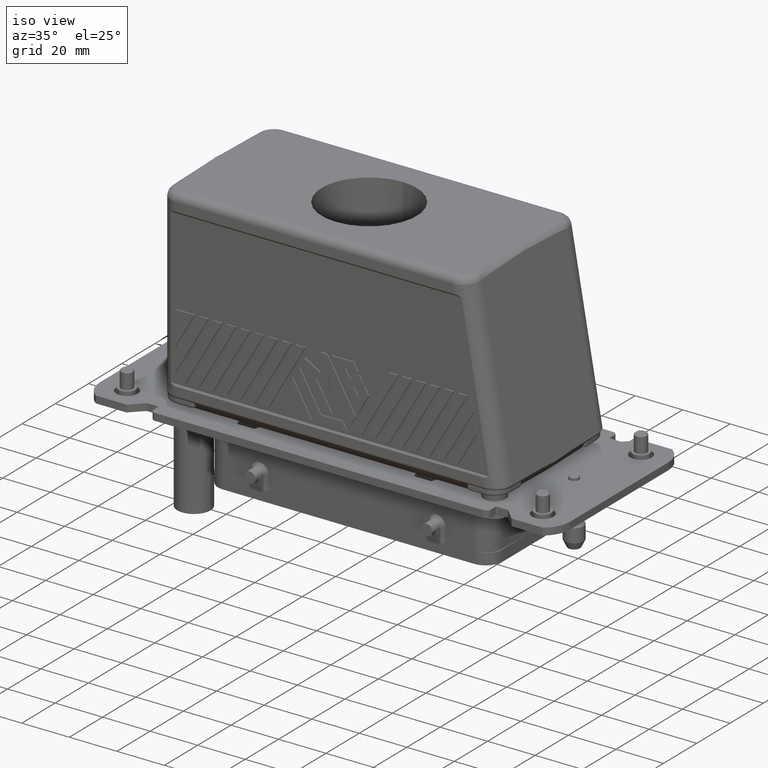
[diagram: clean part render]
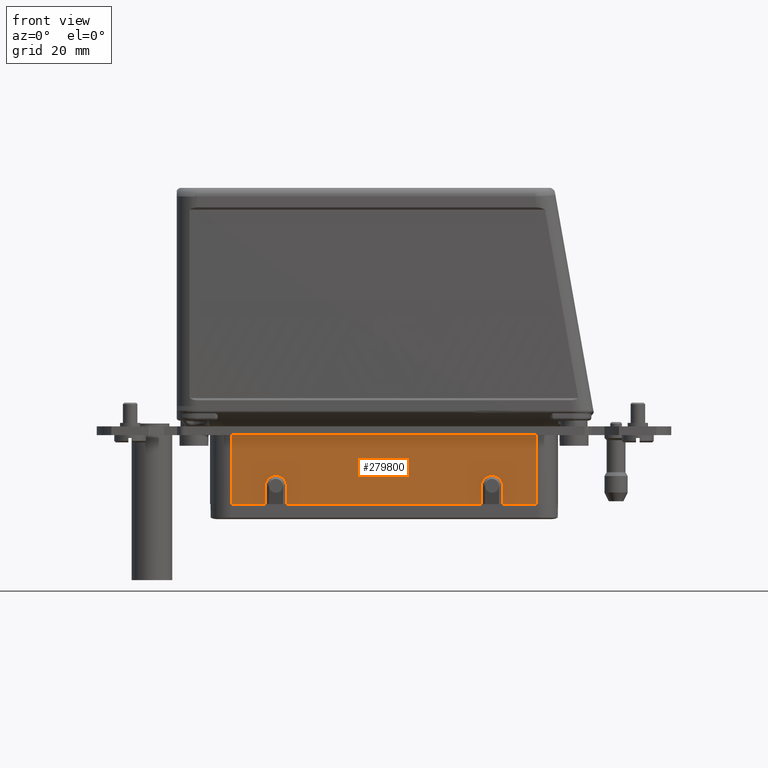
[diagram: tour spotlight — one face highlighted and labeled with its STEP entity id]
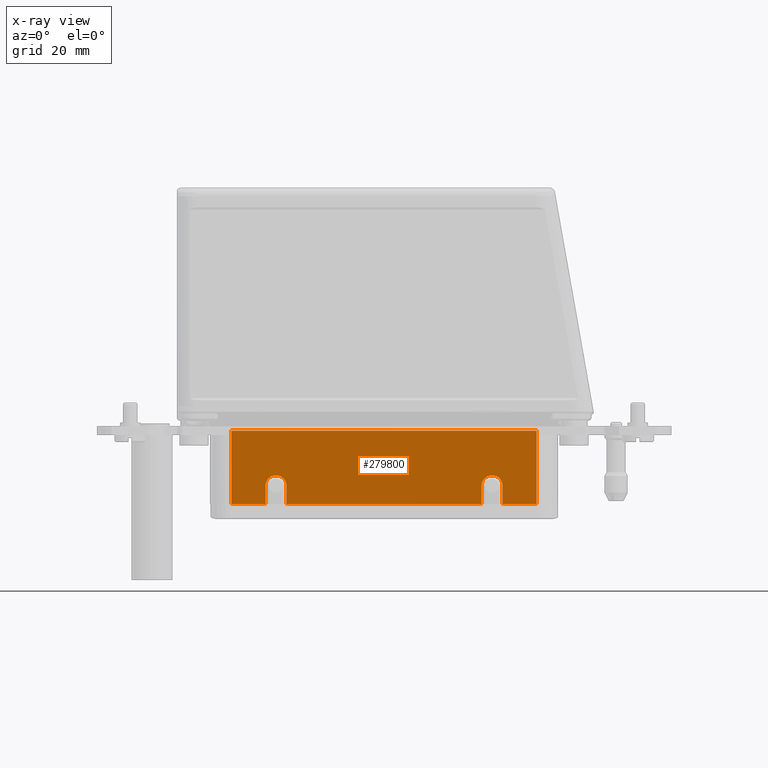
[diagram: x-ray of the same camera — body ghosted, this tour face saturated]
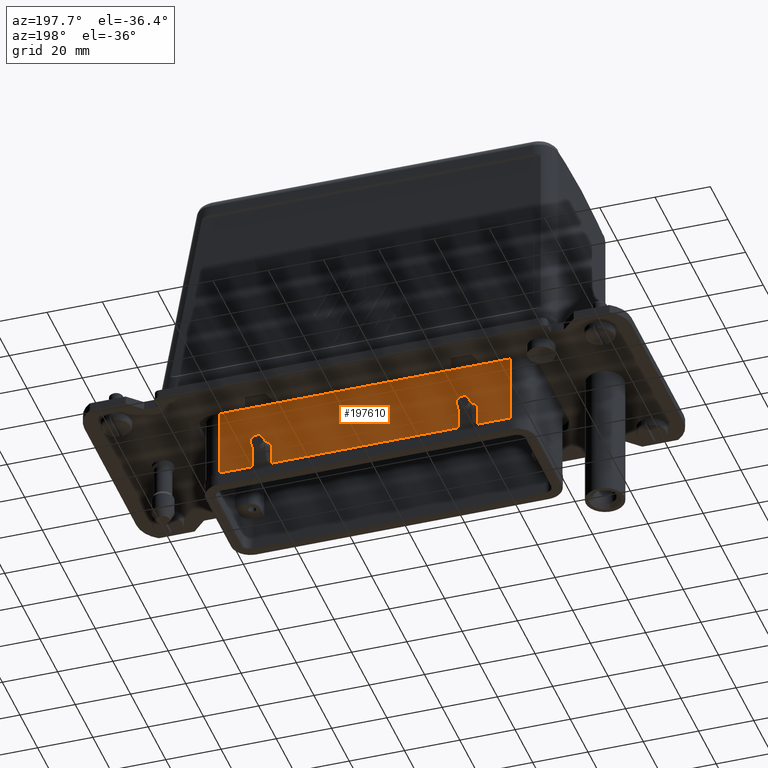
[diagram: tour spotlight — one face highlighted and labeled with its STEP entity id]
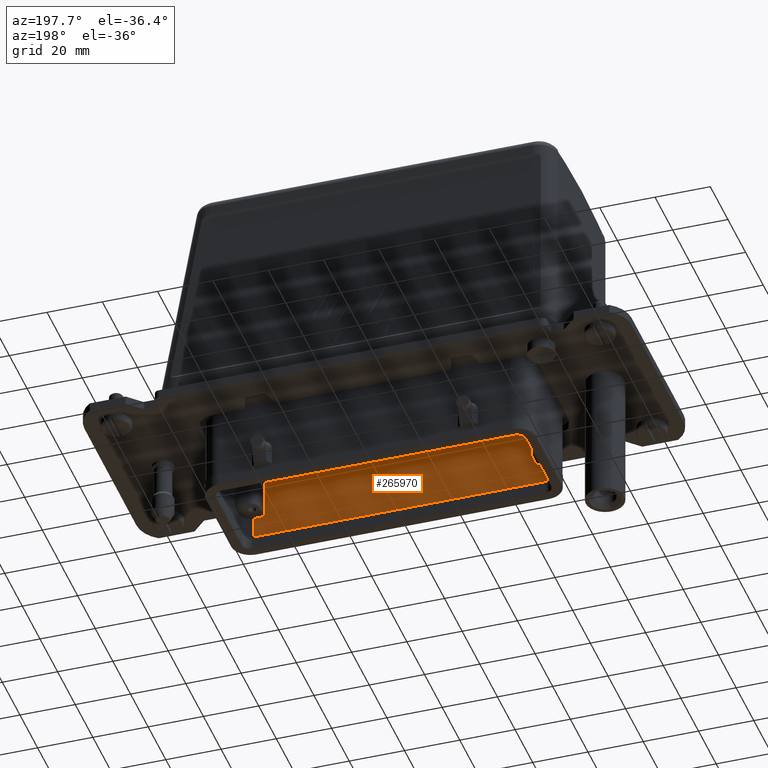
[diagram: tour spotlight — one face highlighted and labeled with its STEP entity id]
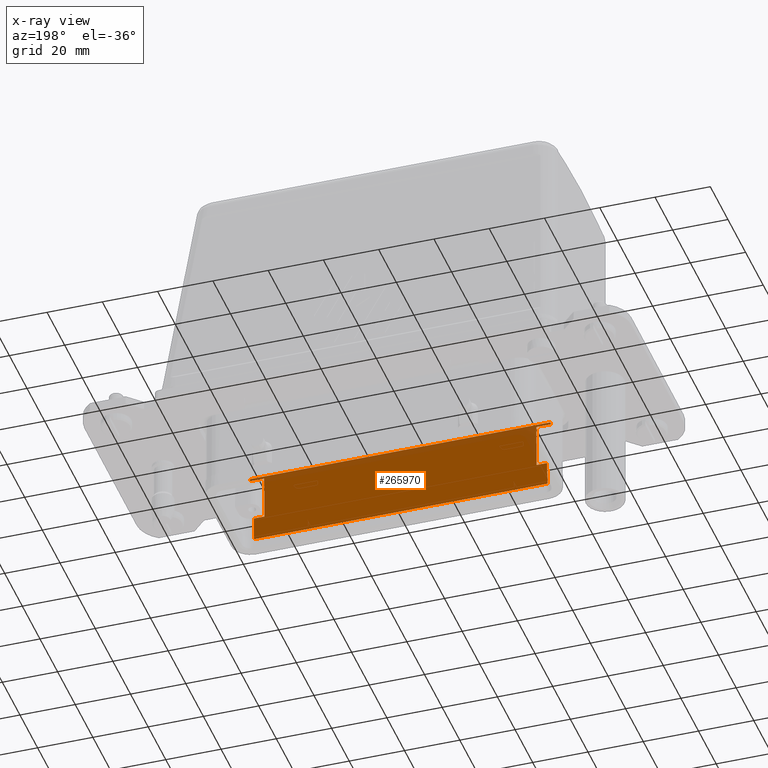
[diagram: x-ray of the same camera — body ghosted, this tour face saturated]
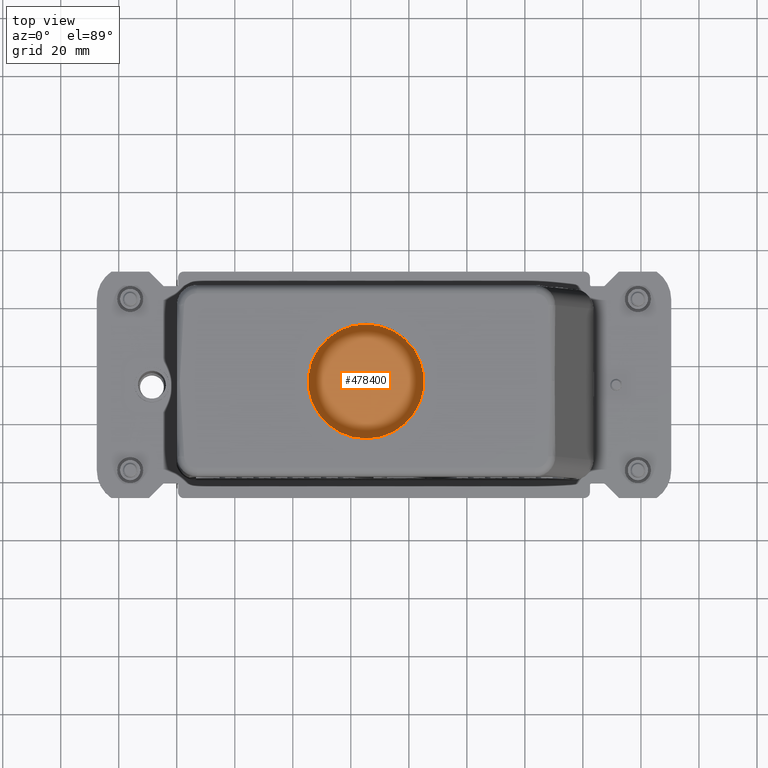
[diagram: tour spotlight — one face highlighted and labeled with its STEP entity id]
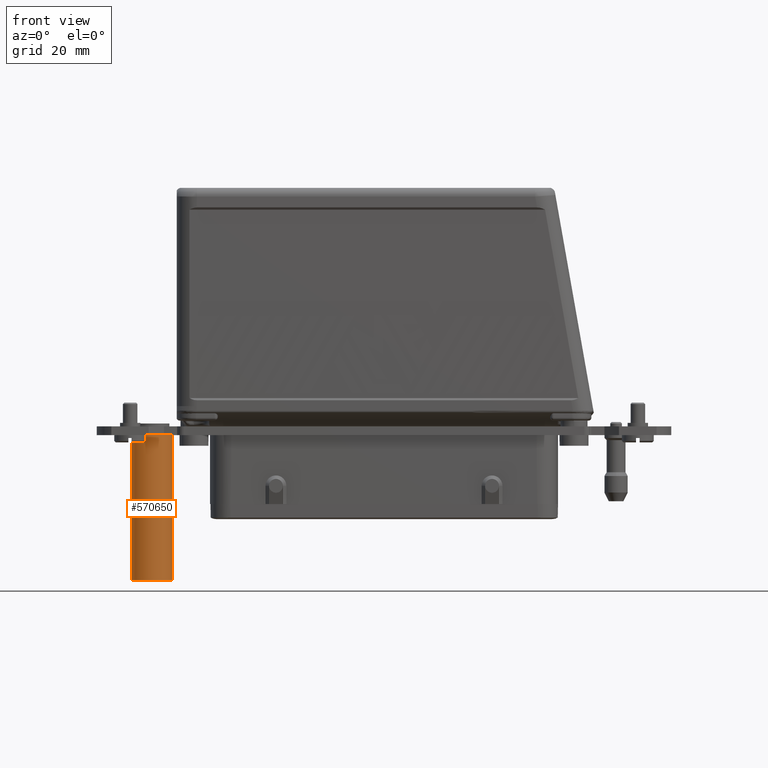
[diagram: tour spotlight — one face highlighted and labeled with its STEP entity id]
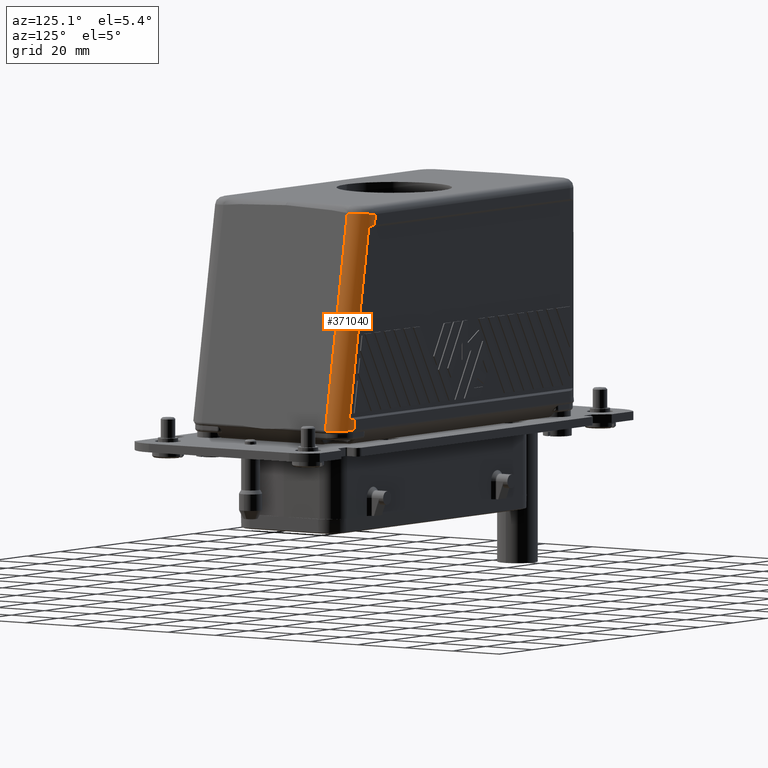
[diagram: tour spotlight — one face highlighted and labeled with its STEP entity id]
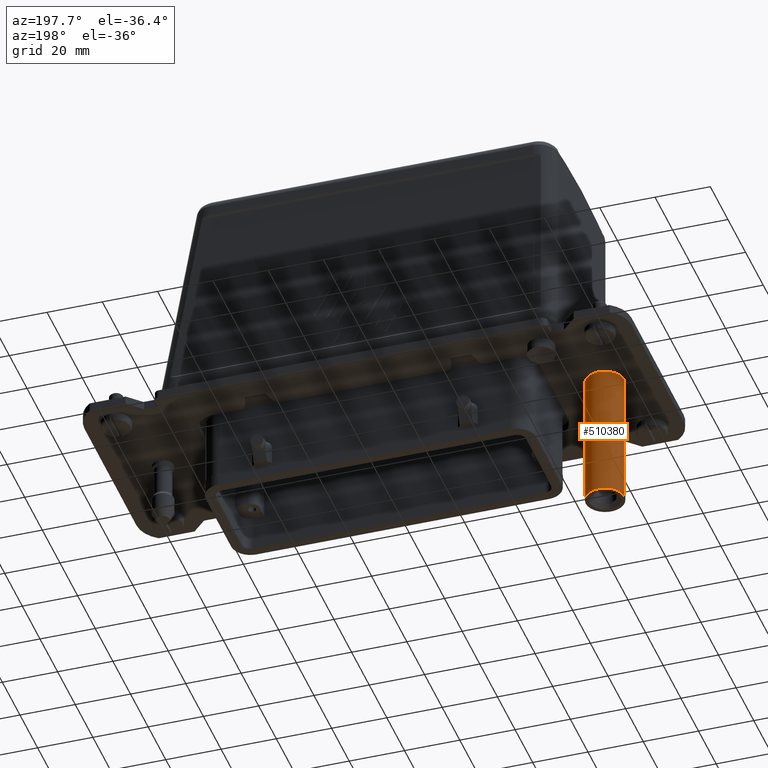
[diagram: tour spotlight — one face highlighted and labeled with its STEP entity id]
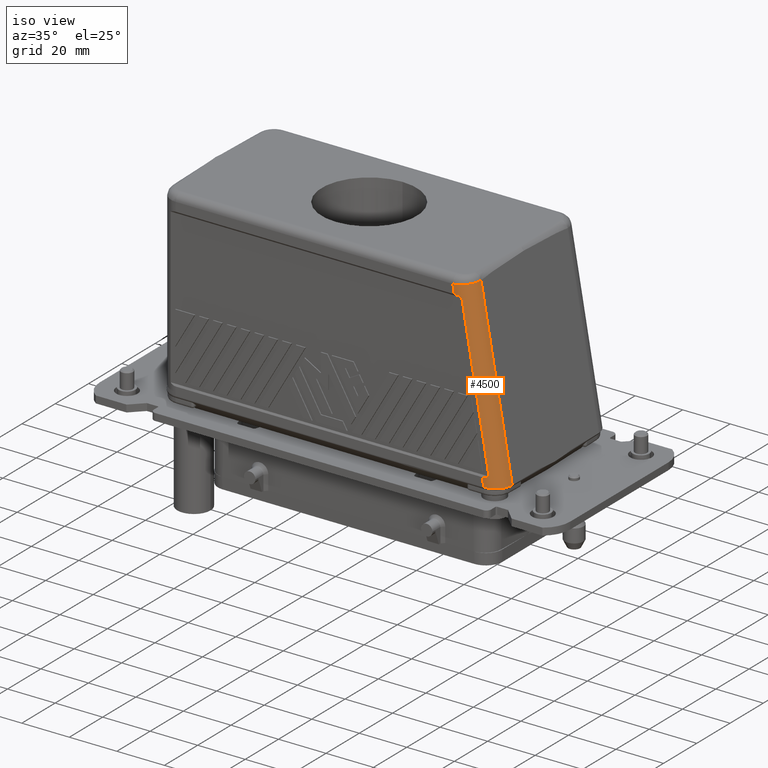
[diagram: tour spotlight — one face highlighted and labeled with its STEP entity id]
A machine part: a face-by-face anatomy tour. The part has 986 B-rep faces; the first image is the clean iso view, then the 8 largest visible faces are spotlighted one at a time (largest first), each with its STEP entity span.

Face 1 — front view, entity #279800. An x-ray twin of the same camera follows (body ghosted, this face saturated) — the face is partly hidden behind the body. In plain terms, the highlighted planar face has unit normal (-0, -1, -0).
Definition (entity closure, byte-faithful):
#211220=CARTESIAN_POINT('',(25.1249826717835,45.036608000024,
48.654455752932));
#211230=VERTEX_POINT('',#211220);
#277940=CARTESIAN_POINT('',(25.1249826717887,45.036608000024,
-56.5706322061951));
#277950=VERTEX_POINT('',#277940);
#278230=CARTESIAN_POINT('',(25.1249826717887,20.0000000000222,
-56.5706322061951));
#278240=DIRECTION('',(-2.40356057059527E-31,1.,1.62312834311912E-32));
#278250=VECTOR('',#278240,1.);
#278260=LINE('',#278230,#278250);
#278270=CARTESIAN_POINT('',(25.1249826717887,19.7826389097134,
-56.5706322061951));
#278280=VERTEX_POINT('',#278270);
#278290=EDGE_CURVE('',#278280,#277950,#278260,.T.);
#278860=CARTESIAN_POINT('',(25.124982671783,19.715688001193,
-46.4534603858266));
#278870=DIRECTION('',(-1.,-2.40356057059527E-31,-2.88336182627288E-15));
#278880=DIRECTION('',(-2.88336182627288E-15,0.,1.));
#278890=AXIS2_PLACEMENT_3D('',#278860,#278870,#278880);
#278900=PLANE('',#278890);
#278910=CARTESIAN_POINT('',(25.1249826717828,22.9096234967532,
29.6899547671704));
#278920=DIRECTION('',(-5.91645678915759E-31,1.,1.22464679914715E-16));
#278930=VECTOR('',#278920,1.);
#278940=LINE('',#278910,#278930);
#278950=CARTESIAN_POINT('',(25.1249821967273,19.7826389934766,
29.6899550046982));
#278960=VERTEX_POINT('',#278950);
#278970=CARTESIAN_POINT('',(25.1249826717823,26.0366080000298,
29.6899547671699));
#278980=VERTEX_POINT('',#278970);
#278990=EDGE_CURVE('',#278960,#278980,#278940,.T.);
#279000=ORIENTED_EDGE('',*,*,#278990,.T.);
#279010=CARTESIAN_POINT('',(25.1249826717836,19.7826389097042,
-16.9572958031298));
#279020=DIRECTION('',(-2.88336182627288E-15,-2.1838096442105E-14,1.));
#279030=VECTOR('',#279020,1.);
#279040=LINE('',#279010,#279030);
#279050=CARTESIAN_POINT('',(25.1249823137013,19.7826389728524,
-37.598460743909));
#279060=VERTEX_POINT('',#279050);
#279070=EDGE_CURVE('',#279060,#278960,#279040,.T.);
#279080=ORIENTED_EDGE('',*,*,#279070,.T.);
#279090=CARTESIAN_POINT('',(25.124982671783,22.9096234967456,
-37.5984603858273));
#279100=DIRECTION('',(5.91645678915759E-31,-1.,-1.22464679914715E-16));
#279110=VECTOR('',#279100,1.);
#279120=LINE('',#279090,#279110);
#279130=CARTESIAN_POINT('',(25.1249826717828,26.0366080000222,
-37.598460385827));
#279140=VERTEX_POINT('',#279130);
#279150=EDGE_CURVE('',#279140,#279060,#279120,.T.);
#279160=ORIENTED_EDGE('',*,*,#279150,.T.);
#279170=CARTESIAN_POINT('',(25.124982671783,26.0366080000222,
-41.1984603858273));
#279180=DIRECTION('',(1.,1.23259516440783E-32,2.10623481404942E-14));
#279190=DIRECTION('',(2.10623481404942E-14,0.,-1.));
#279200=AXIS2_PLACEMENT_3D('',#279170,#279180,#279190);
#279210=CIRCLE('',#279200,3.60000000000042);
#279220=CARTESIAN_POINT('',(25.1249826717828,26.0366080000222,
-44.7984603858274));
#279230=VERTEX_POINT('',#279220);
#279240=EDGE_CURVE('',#279230,#279140,#279210,.T.);
#279250=ORIENTED_EDGE('',*,*,#279240,.T.);
#279260=CARTESIAN_POINT('',(25.124982671783,22.9096234548633,
-44.7984603858272));
#279270=DIRECTION('',(-5.91645678915759E-31,1.,1.22464679914715E-16));
#279280=VECTOR('',#279270,1.);
#279290=LINE('',#279260,#279280);
#279300=CARTESIAN_POINT('',(25.1249821967798,19.782638993469,
-44.7984599108023));
#279310=VERTEX_POINT('',#279300);
#279320=EDGE_CURVE('',#279310,#279230,#279290,.T.);
#279330=ORIENTED_EDGE('',*,*,#279320,.T.);
#279340=CARTESIAN_POINT('',(25.1249826717886,19.7826389097042,
-37.4572958031299));
#279350=DIRECTION('',(-2.88336182627288E-15,-2.1838096442105E-14,1.));
#279360=VECTOR('',#279350,1.);
#279370=LINE('',#279340,#279360);
#279380=EDGE_CURVE('',#278280,#279310,#279370,.T.);
#279390=ORIENTED_EDGE('',*,*,#279380,.T.);
#279400=ORIENTED_EDGE('',*,*,#278290,.F.);
#279410=CARTESIAN_POINT('',(25.124982671783,45.036608000024,
-41.4534603858269));
#279420=DIRECTION('',(-2.88336182627288E-15,2.05103835357463E-29,1.));
#279430=VECTOR('',#279420,1.);
#279440=LINE('',#279410,#279430);
#279450=EDGE_CURVE('',#277950,#211230,#279440,.T.);
#279460=ORIENTED_EDGE('',*,*,#279450,.F.);
#279470=CARTESIAN_POINT('',(25.1249826717835,20.0000000000298,
48.654455752932));
#279480=DIRECTION('',(2.40356057059527E-31,-1.,-1.62312834311911E-32));
#279490=VECTOR('',#279480,1.);
#279500=LINE('',#279470,#279490);
#279510=CARTESIAN_POINT('',(25.1249826717835,19.7826389097111,
48.654455752932));
#279520=VERTEX_POINT('',#279510);
#279530=EDGE_CURVE('',#211230,#279520,#279500,.T.);
#279540=ORIENTED_EDGE('',*,*,#279530,.F.);
#279550=CARTESIAN_POINT('',(25.1249826717836,19.7826389097118,
9.53270419687026));
#279560=DIRECTION('',(-2.88336182627288E-15,-2.1838096442105E-14,1.));
#279570=VECTOR('',#279560,1.);
#279580=LINE('',#279550,#279570);
#279590=CARTESIAN_POINT('',(25.1249821967264,19.7826389934766,
36.8899545296421));
#279600=VERTEX_POINT('',#279590);
#279610=EDGE_CURVE('',#279600,#279520,#279580,.T.);
#279620=ORIENTED_EDGE('',*,*,#279610,.T.);
#279630=CARTESIAN_POINT('',(25.1249826717828,22.9096234967532,
36.8899547671702));
#279640=DIRECTION('',(5.91645678915759E-31,-1.,-1.22464679914715E-16));
#279650=VECTOR('',#279640,1.);
#279660=LINE('',#279630,#279650);
#279670=CARTESIAN_POINT('',(25.1249826717827,26.0366080000298,
36.8899547671703));
#279680=VERTEX_POINT('',#279670);
#279690=EDGE_CURVE('',#279680,#279600,#279660,.T.);
#279700=ORIENTED_EDGE('',*,*,#279690,.T.);
#279710=CARTESIAN_POINT('',(25.1249826717828,26.0366080000298,
33.28995476717));
#279720=DIRECTION('',(1.,-2.56996091779033E-30,-2.1065198466273E-14));
#279730=DIRECTION('',(-2.1065198466273E-14,0.,-1.));
#279740=AXIS2_PLACEMENT_3D('',#279710,#279720,#279730);
#279750=CIRCLE('',#279740,3.60000000000042);
#279760=EDGE_CURVE('',#278980,#279680,#279750,.T.);
#279770=ORIENTED_EDGE('',*,*,#279760,.T.);
#279780=EDGE_LOOP('',(#279770,#279700,#279620,#279540,#279460,#279400,
#279390,#279330,#279250,#279160,#279080,#279000));
#279790=FACE_OUTER_BOUND('',#279780,.T.);
#279800=ADVANCED_FACE('',(#279790),#278900,.T.);

Face 2 — auxiliary view, entity #197610. In plain terms, the highlighted planar face has unit normal (0, 1, 0).
Definition (entity closure, byte-faithful):
#187270=CARTESIAN_POINT('',(68.1204348649359,26.0366080000222,
-37.5984603858274));
#187280=VERTEX_POINT('',#187270);
#187310=CARTESIAN_POINT('',(68.1204348649357,26.0366080000222,
-41.1984603858275));
#187320=DIRECTION('',(-1.,-3.05067303190938E-30,-2.85363892759248E-14));
#187330=DIRECTION('',(-2.85363892759248E-14,0.,1.));
#187340=AXIS2_PLACEMENT_3D('',#187310,#187320,#187330);
#187350=CIRCLE('',#187340,3.60000000000042);
#187360=CARTESIAN_POINT('',(68.1204348649361,26.0366080000222,
-44.7984603858276));
#187370=VERTEX_POINT('',#187360);
#187380=EDGE_CURVE('',#187280,#187370,#187350,.T.);
#188780=CARTESIAN_POINT('',(68.1204348649357,19.782638993469,
-44.7984603858253));
#188790=VERTEX_POINT('',#188780);
#188860=CARTESIAN_POINT('',(68.1204348649349,19.782638993469,
-37.5984603858269));
#188870=VERTEX_POINT('',#188860);
#190630=CARTESIAN_POINT('',(68.1204348649356,22.9096234967456,
-37.5984603858276));
#190640=DIRECTION('',(1.0230539864585E-30,1.,-1.22464679914715E-16));
#190650=VECTOR('',#190640,1.);
#190660=LINE('',#190630,#190650);
#190670=EDGE_CURVE('',#188870,#187280,#190660,.T.);
#192140=CARTESIAN_POINT('',(68.1204348649357,22.9096234967456,
-44.7984603858274));
#192150=DIRECTION('',(-1.0230539864585E-30,-1.,1.22464679914715E-16));
#192160=VECTOR('',#192150,1.);
#192170=LINE('',#192140,#192160);
#192180=EDGE_CURVE('',#187370,#188790,#192170,.T.);
#196800=CARTESIAN_POINT('',(68.1204348649355,19.715688001193,
-25.9534603858265));
#196810=DIRECTION('',(1.,2.40356057059527E-31,1.03541961112002E-14));
#196820=DIRECTION('',(1.03541961112002E-14,0.,-1.));
#196830=AXIS2_PLACEMENT_3D('',#196800,#196810,#196820);
#196840=PLANE('',#196830);
#196850=ORIENTED_EDGE('',*,*,#190670,.T.);
#196860=CARTESIAN_POINT('',(68.1204348649462,19.7826389934782,
-10.9672958031298));
#196870=DIRECTION('',(-1.03541961112002E-14,-2.41722350651733E-14,1.));
#196880=VECTOR('',#196870,1.);
#196890=LINE('',#196860,#196880);
#196900=CARTESIAN_POINT('',(68.120434864937,19.7826389934766,
29.6899547671723));
#196910=VERTEX_POINT('',#196900);
#196920=EDGE_CURVE('',#188870,#196910,#196890,.T.);
#196930=ORIENTED_EDGE('',*,*,#196920,.F.);
#196940=CARTESIAN_POINT('',(68.1204348649349,22.9096234967532,
29.6899547671702));
#196950=DIRECTION('',(-1.0230539864585E-30,-1.,1.22464679914715E-16));
#196960=VECTOR('',#196950,1.);
#196970=LINE('',#196940,#196960);
#196980=CARTESIAN_POINT('',(68.120434864935,26.0366080000298,
29.6899547671697));
#196990=VERTEX_POINT('',#196980);
#197000=EDGE_CURVE('',#196990,#196910,#196970,.T.);
#197010=ORIENTED_EDGE('',*,*,#197000,.T.);
#197020=CARTESIAN_POINT('',(68.1204348649349,26.0366080000298,
33.2899547671701));
#197030=DIRECTION('',(-1.,-3.05067303190938E-30,-2.85363892759248E-14));
#197040=DIRECTION('',(-2.85363892759248E-14,0.,1.));
#197050=AXIS2_PLACEMENT_3D('',#197020,#197030,#197040);
#197060=CIRCLE('',#197050,3.60000000000042);
#197070=CARTESIAN_POINT('',(68.1204348649348,26.0366080000298,
36.8899547671706));
#197080=VERTEX_POINT('',#197070);
#197090=EDGE_CURVE('',#197080,#196990,#197060,.T.);
#197100=ORIENTED_EDGE('',*,*,#197090,.T.);
#197110=CARTESIAN_POINT('',(68.1204348649349,22.9096234967532,
36.8899547671701));
#197120=DIRECTION('',(1.0230539864585E-30,1.,-1.22464679914715E-16));
#197130=VECTOR('',#197120,1.);
#197140=LINE('',#197110,#197130);
#197150=CARTESIAN_POINT('',(68.1204348649349,19.7826389934766,
36.889954767167));
#197160=VERTEX_POINT('',#197150);
#197170=EDGE_CURVE('',#197160,#197080,#197140,.T.);
#197180=ORIENTED_EDGE('',*,*,#197170,.T.);
#197190=CARTESIAN_POINT('',(68.1204348649411,19.7826389934782,
9.53270419687026));
#197200=DIRECTION('',(-1.03541961112002E-14,-2.41722350651733E-14,1.));
#197210=VECTOR('',#197200,1.);
#197220=LINE('',#197190,#197210);
#197230=CARTESIAN_POINT('',(68.1204348649407,19.7826389934688,
48.654455752932));
#197240=VERTEX_POINT('',#197230);
#197250=EDGE_CURVE('',#197160,#197240,#197220,.T.);
#197260=ORIENTED_EDGE('',*,*,#197250,.F.);
#197270=CARTESIAN_POINT('',(68.1204348649407,20.0000000000298,
48.654455752932));
#197280=DIRECTION('',(-2.40356057059527E-31,1.,1.62312834311911E-32));
#197290=VECTOR('',#197280,1.);
#197300=LINE('',#197270,#197290);
#197310=CARTESIAN_POINT('',(68.1204348649407,45.0366080000316,
48.654455752932));
#197320=VERTEX_POINT('',#197310);
#197330=EDGE_CURVE('',#197240,#197320,#197300,.T.);
#197340=ORIENTED_EDGE('',*,*,#197330,.F.);
#197350=CARTESIAN_POINT('',(68.1204348649357,45.036608000024,
-41.4534603858269));
#197360=DIRECTION('',(-1.03541961112002E-14,2.05103835357463E-29,1.));
#197370=VECTOR('',#197360,1.);
#197380=LINE('',#197350,#197370);
#197390=CARTESIAN_POINT('',(68.1204348649462,45.036608000024,
-56.5706321937552));
#197400=VERTEX_POINT('',#197390);
#197410=EDGE_CURVE('',#197400,#197320,#197380,.T.);
#197420=ORIENTED_EDGE('',*,*,#197410,.T.);
#197430=CARTESIAN_POINT('',(68.1204348649462,20.0000000000222,
-56.5706321937552));
#197440=DIRECTION('',(-2.40356057059527E-31,1.,1.62312834311911E-32));
#197450=VECTOR('',#197440,1.);
#197460=LINE('',#197430,#197450);
#197470=CARTESIAN_POINT('',(68.1204348649462,19.7826389934702,
-56.5706321937552));
#197480=VERTEX_POINT('',#197470);
#197490=EDGE_CURVE('',#197480,#197400,#197460,.T.);
#197500=ORIENTED_EDGE('',*,*,#197490,.T.);
#197510=CARTESIAN_POINT('',(68.1204348649388,19.782638993469,
-37.4572958031299));
#197520=DIRECTION('',(-1.2603882944068E-13,1.22464679914716E-16,-1.));
#197530=VECTOR('',#197520,1.);
#197540=LINE('',#197510,#197530);
#197550=EDGE_CURVE('',#188790,#197480,#197540,.T.);
#197560=ORIENTED_EDGE('',*,*,#197550,.T.);
#197570=ORIENTED_EDGE('',*,*,#192180,.T.);
#197580=ORIENTED_EDGE('',*,*,#187380,.T.);
#197590=EDGE_LOOP('',(#197580,#197570,#197560,#197500,#197420,#197340,
#197260,#197180,#197100,#197010,#196930,#196850));
#197600=FACE_OUTER_BOUND('',#197590,.T.);
#197610=ADVANCED_FACE('',(#197600),#196840,.T.);

Face 3 — auxiliary view, entity #265970. An x-ray twin of the same camera follows (body ghosted, this face saturated) — the face is partly hidden behind the body. In plain terms, the highlighted planar face has unit normal (-0, -0.9998, 0.0209).
Definition (entity closure, byte-faithful):
#215970=CARTESIAN_POINT('',(27.7368843123822,19.7807545245888,
-57.1416259170758));
#215980=VERTEX_POINT('',#215970);
#216480=CARTESIAN_POINT('',(27.736884312377,19.7807545245889,
49.2254494638128));
#216490=VERTEX_POINT('',#216480);
#216520=CARTESIAN_POINT('',(27.7368843123717,19.780754524589,0.));
#216530=DIRECTION('',(2.88207919159606E-15,-6.12323399573677E-17,-1.));
#216540=VECTOR('',#216530,1.);
#216550=LINE('',#216520,#216540);
#216560=EDGE_CURVE('',#216490,#215980,#216550,.T.);
#264170=CARTESIAN_POINT('',(28.2738377418099,45.4146435244144,
-58.4079300182018));
#264180=VERTEX_POINT('',#264170);
#264210=CARTESIAN_POINT('',(28.2738377416224,45.4146435154738,
24.0017535649384));
#264220=DIRECTION('',(2.27519399371574E-12,1.08489713052321E-10,-1.));
#264230=VECTOR('',#264220,1.);
#264240=LINE('',#264210,#264230);
#264250=CARTESIAN_POINT('',(28.2738377537993,45.4146440967711,
-0.216883061279866));
#264260=VERTEX_POINT('',#264250);
#264270=EDGE_CURVE('',#264260,#264180,#264240,.T.);
#264960=CARTESIAN_POINT('',(27.7318115179623,19.5385818487483,
16.2565396141731));
#264970=DIRECTION('',(-0.999780683474846,0.020942419883357,
-2.88272945737637E-15));
#264980=DIRECTION('',(-2.88336182627287E-15,-3.30413126134074E-32,1.));
#264990=AXIS2_PLACEMENT_3D('',#264960,#264970,#264980);
#265000=PLANE('',#264990);
#265010=CARTESIAN_POINT('',(27.3225365722017,0.,-53.2038627075968));
#265020=DIRECTION('',(0.020942419883357,0.999780683474846,
7.97972798949331E-17));
#265030=VECTOR('',#265020,1.);
#265040=LINE('',#265010,#265030);
#265050=CARTESIAN_POINT('',(27.9202932969127,28.5366080000223,
-53.2038627075968));
#265060=VERTEX_POINT('',#265050);
#265070=CARTESIAN_POINT('',(28.2554455194673,44.5366080000222,
-53.2038627075968));
#265080=VERTEX_POINT('',#265070);
#265090=EDGE_CURVE('',#265060,#265080,#265040,.T.);
#265100=ORIENTED_EDGE('',*,*,#265090,.T.);
#265110=CARTESIAN_POINT('',(27.9202932969231,28.5366080000193,
19.5427041968702));
#265120=DIRECTION('',(-3.7355954048259E-15,-4.06852061219101E-14,1.));
#265130=VECTOR('',#265120,1.);
#265140=LINE('',#265110,#265130);
#265150=CARTESIAN_POINT('',(27.9202932969231,28.536608000022,
-56.958216932535));
#265160=VERTEX_POINT('',#265150);
#265170=EDGE_CURVE('',#265160,#265060,#265140,.T.);
#265180=ORIENTED_EDGE('',*,*,#265170,.T.);
#265190=CARTESIAN_POINT('',(27.7336126326106,19.6245661635323,
-57.1448975968474));
#265200=DIRECTION('',(-0.0209378288783664,-0.99956151118564,
-0.0209378288783662));
#265210=VECTOR('',#265200,1.);
#265220=LINE('',#265190,#265210);
#265230=EDGE_CURVE('',#265160,#215980,#265220,.T.);
#265240=ORIENTED_EDGE('',*,*,#265230,.F.);
#265250=ORIENTED_EDGE('',*,*,#216560,.T.);
#265260=CARTESIAN_POINT('',(27.7336126326055,19.6245661635399,
49.2287211435842));
#265270=DIRECTION('',(-0.0209378288783664,-0.99956151118564,
0.0209378288783663));
#265280=VECTOR('',#265270,1.);
#265290=LINE('',#265260,#265280);
#265300=CARTESIAN_POINT('',(27.920293296918,28.5366080000297,
49.0420404792718));
#265310=VERTEX_POINT('',#265300);
#265320=EDGE_CURVE('',#265310,#216490,#265290,.T.);
#265330=ORIENTED_EDGE('',*,*,#265320,.T.);
#265340=CARTESIAN_POINT('',(27.9202932969181,28.5366080000288,
19.5427041968703));
#265350=DIRECTION('',(-2.88336182627287E-15,1.44826305879659E-30,1.));
#265360=VECTOR('',#265350,1.);
#265370=LINE('',#265340,#265360);
#265380=CARTESIAN_POINT('',(27.9202932969126,28.5366080000298,
45.2861372924033));
#265390=VERTEX_POINT('',#265380);
#265400=EDGE_CURVE('',#265390,#265310,#265370,.T.);
#265410=ORIENTED_EDGE('',*,*,#265400,.T.);
#265420=CARTESIAN_POINT('',(27.3225365722015,0.,45.2861372924033));
#265430=DIRECTION('',(-0.020942419883357,-0.999780683474846,
-7.97972798949331E-17));
#265440=VECTOR('',#265430,1.);
#265450=LINE('',#265420,#265440);
#265460=CARTESIAN_POINT('',(28.2554455194672,44.5366080000298,
45.2861372924033));
#265470=VERTEX_POINT('',#265460);
#265480=EDGE_CURVE('',#265470,#265390,#265450,.T.);
#265490=ORIENTED_EDGE('',*,*,#265480,.T.);
#265500=CARTESIAN_POINT('',(28.2554455194673,44.5366080000298,0.));
#265510=DIRECTION('',(-2.88336182627287E-15,0.,1.));
#265520=VECTOR('',#265510,1.);
#265530=LINE('',#265500,#265520);
#265540=CARTESIAN_POINT('',(28.255445519467,44.5366080000298,
50.4917535649384));
#265550=VERTEX_POINT('',#265540);
#265560=EDGE_CURVE('',#265470,#265550,#265530,.T.);
#265570=ORIENTED_EDGE('',*,*,#265560,.F.);
#265580=CARTESIAN_POINT('',(27.7419155315558,20.0209424199132,
50.4917535649384));
#265590=DIRECTION('',(-0.020942419883357,-0.999780683474846,
-7.97972798949331E-17));
#265600=VECTOR('',#265590,1.);
#265610=LINE('',#265580,#265600);
#265620=CARTESIAN_POINT('',(28.2738377416224,45.4146435154814,
50.4917535649384));
#265630=VERTEX_POINT('',#265620);
#265640=EDGE_CURVE('',#265630,#265550,#265610,.T.);
#265650=ORIENTED_EDGE('',*,*,#265640,.T.);
#265660=CARTESIAN_POINT('',(28.2738377416224,45.4146435154814,
50.4917535649384));
#265670=DIRECTION('',(2.27519399371574E-12,1.0848962683154E-10,-1.));
#265680=VECTOR('',#265670,1.);
#265690=LINE('',#265660,#265680);
#265700=CARTESIAN_POINT('',(28.2738377537988,45.4146440967711,
26.2731169387202));
#265710=VERTEX_POINT('',#265700);
#265720=EDGE_CURVE('',#265630,#265710,#265690,.T.);
#265730=ORIENTED_EDGE('',*,*,#265720,.F.);
#265740=CARTESIAN_POINT('',(28.2738377537988,45.4146440967711,
26.2731169387202));
#265750=DIRECTION('',(2.10623481404942E-14,-2.05541333838009E-29,-1.));
#265760=VECTOR('',#265750,1.);
#265770=LINE('',#265740,#265760);
#265780=EDGE_CURVE('',#265710,#264260,#265770,.T.);
#265790=ORIENTED_EDGE('',*,*,#265780,.F.);
#265800=ORIENTED_EDGE('',*,*,#264270,.F.);
#265810=CARTESIAN_POINT('',(27.7419155315561,20.0209424199056,
-58.4079300182018));
#265820=DIRECTION('',(-0.020942419883357,-0.999780683474846,
-7.97972798949331E-17));
#265830=VECTOR('',#265820,1.);
#265840=LINE('',#265810,#265830);
#265850=CARTESIAN_POINT('',(28.2554455194673,44.5366080000222,
-58.4079300182018));
#265860=VERTEX_POINT('',#265850);
#265870=EDGE_CURVE('',#264180,#265860,#265840,.T.);
#265880=ORIENTED_EDGE('',*,*,#265870,.F.);
#265890=CARTESIAN_POINT('',(28.2554455194671,44.5366080000222,0.));
#265900=DIRECTION('',(2.88336182627287E-15,0.,-1.));
#265910=VECTOR('',#265900,1.);
#265920=LINE('',#265890,#265910);
#265930=EDGE_CURVE('',#265080,#265860,#265920,.T.);
#265940=ORIENTED_EDGE('',*,*,#265930,.T.);
#265950=EDGE_LOOP('',(#265940,#265880,#265800,#265790,#265730,#265650,
#265570,#265490,#265410,#265330,#265250,#265240,#265180,#265100));
#265960=FACE_OUTER_BOUND('',#265950,.T.);
#265970=ADVANCED_FACE('',(#265960),#265000,.F.);

Face 4 — top view, entity #478400. In plain terms, the highlighted planar face has unit normal (0, -0, 1).
Definition (entity closure, byte-faithful):
#478070=CARTESIAN_POINT('',(66.5911340465726,98.7497464690435,
-10.1431997545102));
#478080=VERTEX_POINT('',#478070);
#478110=CARTESIAN_POINT('',(46.5911340465726,98.7497464690435,
-10.1431997545102));
#478120=DIRECTION('',(1.24492111605191E-30,1.,4.30211422042248E-16));
#478130=DIRECTION('',(1.,-1.24492111605191E-30,-2.16767162837315E-46));
#478140=AXIS2_PLACEMENT_3D('',#478110,#478120,#478130);
#478150=CIRCLE('',#478140,20.);
#478160=CARTESIAN_POINT('',(26.5911340465726,98.7497464690435,
-10.1431997545102));
#478170=VERTEX_POINT('',#478160);
#478180=EDGE_CURVE('',#478080,#478170,#478150,.T.);
#478300=CARTESIAN_POINT('',(46.5911340231846,98.7497464690435,
-11.4096939530898));
#478310=DIRECTION('',(1.24492111605191E-30,1.,4.30211422042248E-16));
#478320=DIRECTION('',(1.,-1.24492111605191E-30,-2.16767162837315E-46));
#478330=AXIS2_PLACEMENT_3D('',#478300,#478310,#478320);
#478340=PLANE('',#478330);
#478350=EDGE_CURVE('',#478170,#478080,#478150,.T.);
#478360=ORIENTED_EDGE('',*,*,#478350,.T.);
#478370=ORIENTED_EDGE('',*,*,#478180,.T.);
#478380=EDGE_LOOP('',(#478370,#478360));
#478390=FACE_OUTER_BOUND('',#478380,.T.);
#478400=ADVANCED_FACE('',(#478390),#478340,.T.);

Face 5 — front view, entity #570650. In plain terms, the highlighted cylindrical surface (edge-blend (fillet) strip) has radius 7 mm, axis along (0, -0, -1).
Definition (entity closure, byte-faithful):
#494200=CARTESIAN_POINT('',(46.6227086717811,43.5366080000277,
-83.9531822546437));
#494210=DIRECTION('',(-3.33066907387548E-16,-1.,-1.11022302462471E-16));
#494220=DIRECTION('',(0.,1.11022302462471E-16,-1.));
#494230=AXIS2_PLACEMENT_3D('',#494200,#494210,#494220);
#494240=CIRCLE('',#494230,7.);
#494250=CARTESIAN_POINT('',(46.6227086717811,43.5366080000278,
-76.9531822546437));
#494260=VERTEX_POINT('',#494250);
#494270=CARTESIAN_POINT('',(46.6227086717811,43.5366080000277,
-90.9531822546437));
#494280=VERTEX_POINT('',#494270);
#494290=EDGE_CURVE('',#494260,#494280,#494240,.T.);
#510120=CARTESIAN_POINT('',(46.6227086717811,26.1366080000278,
-90.9531822546437));
#510130=DIRECTION('',(-3.33066907387548E-16,-1.,-1.11022302462471E-16));
#510140=VECTOR('',#510130,1.);
#510150=LINE('',#510120,#510140);
#510160=CARTESIAN_POINT('',(46.6227086717811,-6.46339199997216,
-90.9531822546437));
#510170=VERTEX_POINT('',#510160);
#510180=EDGE_CURVE('',#494280,#510170,#510150,.T.);
#510200=CARTESIAN_POINT('',(46.6227086717811,-6.46339199997216,
-83.9531822546437));
#510210=DIRECTION('',(-3.33066907387548E-16,-1.,-1.11022302462471E-16));
#510220=DIRECTION('',(0.,1.11022302462471E-16,-1.));
#510230=AXIS2_PLACEMENT_3D('',#510200,#510210,#510220);
#510240=CIRCLE('',#510230,7.);
#510250=CARTESIAN_POINT('',(46.6227086717811,-6.46339199997216,
-76.9531822546437));
#510260=VERTEX_POINT('',#510250);
#510290=CARTESIAN_POINT('',(46.6227086717811,26.1366080000278,
-76.9531822546437));
#510300=DIRECTION('',(-3.33066907387548E-16,-1.,-1.11022302462471E-16));
#510310=VECTOR('',#510300,1.);
#510320=LINE('',#510290,#510310);
#510330=EDGE_CURVE('',#494260,#510260,#510320,.T.);
#510630=EDGE_CURVE('',#510260,#510170,#510240,.T.);
#570540=CARTESIAN_POINT('',(46.6227086717811,26.1366080000278,
-83.9531822546437));
#570550=DIRECTION('',(-3.33066907387548E-16,-1.,-1.11022302462471E-16));
#570560=DIRECTION('',(0.,1.11022302462471E-16,-1.));
#570570=AXIS2_PLACEMENT_3D('',#570540,#570550,#570560);
#570580=CYLINDRICAL_SURFACE('',#570570,7.);
#570590=ORIENTED_EDGE('',*,*,#494290,.T.);
#570600=ORIENTED_EDGE('',*,*,#510330,.F.);
#570610=ORIENTED_EDGE('',*,*,#510630,.F.);
#570620=ORIENTED_EDGE('',*,*,#510180,.T.);
#570630=EDGE_LOOP('',(#570620,#570610,#570600,#570590));
#570640=FACE_OUTER_BOUND('',#570630,.T.);
#570650=ADVANCED_FACE('',(#570640),#570580,.T.);

Face 6 — auxiliary view, entity #371040. In plain terms, the highlighted cylindrical surface (edge-blend (fillet) strip) has radius 7 mm, axis along (-0.1736, -0, 0.9848).
Definition (entity closure, byte-faithful):
#16150=CARTESIAN_POINT('',(72.6281038823677,51.9199156959813,
61.1362973214381));
#16160=DIRECTION('',(-1.24492111605191E-30,-1.,6.12323399573677E-17));
#16170=DIRECTION('',(-7.06029849232342E-30,-6.12323399573677E-17,-1.));
#16180=AXIS2_PLACEMENT_3D('',#16150,#16160,#16170);
#16190=ELLIPSE('',#16180,7.10798628320021,7.);
#16200=CARTESIAN_POINT('',(79.6281038823677,51.9199156959813,
61.1362973214383));
#16210=VERTEX_POINT('',#16200);
#16220=CARTESIAN_POINT('',(72.6891896308619,51.9199156959813,
68.2440129543007));
#16230=VERTEX_POINT('',#16220);
#16240=EDGE_CURVE('',#16210,#16230,#16190,.T.);
#29990=CARTESIAN_POINT('',(79.6281038823677,122.011828051194,
48.7772020437612));
#30000=VERTEX_POINT('',#29990);
#30030=CARTESIAN_POINT('',(79.6281038823672,9.47522005119425,
68.6204423515732));
#30040=DIRECTION('',(0.,-0.984807753012208,0.173648177666931));
#30050=VECTOR('',#30040,1.);
#30060=LINE('',#30030,#30050);
#30070=CARTESIAN_POINT('',(79.6281038823675,125.749860699845,
48.1180860330348));
#30080=VERTEX_POINT('',#30070);
#30090=EDGE_CURVE('',#30080,#30000,#30060,.T.);
#31780=CARTESIAN_POINT('',(72.6281038823659,66.036608000039,
58.6471435898732));
#31790=DIRECTION('',(-0.832050294337841,-0.554700196225233,
4.23782129890539E-14));
#31800=DIRECTION('',(0.542648962645761,-0.813973443968617,
0.207314581863769));
#31810=AXIS2_PLACEMENT_3D('',#31780,#31790,#31800);
#31820=ELLIPSE('',#31810,12.8141045046863,7.);
#31830=CARTESIAN_POINT('',(79.6281038823614,55.5366080000133,
60.4985768873121));
#31840=VERTEX_POINT('',#31830);
#31850=CARTESIAN_POINT('',(79.1281038823695,56.2866080000013,
63.0044873764981));
#31860=VERTEX_POINT('',#31850);
#31870=EDGE_CURVE('',#31840,#31860,#31820,.T.);
#44510=CARTESIAN_POINT('',(72.6891896308606,126.305388277685,
55.1278471653965));
#44520=VERTEX_POINT('',#44510);
#46090=CARTESIAN_POINT('',(72.6891896308557,126.305388277685,
55.1278471653966));
#46100=CARTESIAN_POINT('',(72.8889944079164,126.304663442056,
55.1262044046829));
#46110=CARTESIAN_POINT('',(73.0886539795566,126.302499922505,
55.1161272011164));
#46120=CARTESIAN_POINT('',(73.5065351342038,126.297473121439,
55.0768591371272));
#46130=CARTESIAN_POINT('',(73.7244515665227,126.294076770099,
55.0459441739044));
#46140=CARTESIAN_POINT('',(74.2265216572323,126.28444108771,
54.9503316272154));
#46150=CARTESIAN_POINT('',(74.5087841632543,126.27764752312,
54.8780408973258));
#46160=CARTESIAN_POINT('',(75.0623765206939,126.261538962846,
54.6987566906743));
#46170=CARTESIAN_POINT('',(75.3332036817452,126.252239343334,
54.5919360976959));
#46180=CARTESIAN_POINT('',(75.8596273215544,126.231270171336,
54.3453401106561));
#46190=CARTESIAN_POINT('',(76.1147460998057,126.219621005843,
54.2058067868769));
#46200=CARTESIAN_POINT('',(76.6104226965978,126.193901017214,
53.8931342745333));
#46210=CARTESIAN_POINT('',(76.8501495831845,126.179814464949,
53.7197267065129));
#46220=CARTESIAN_POINT('',(77.1919739542976,126.1571600818,
53.4378736816253));
#46230=CARTESIAN_POINT('',(77.3028207143758,126.149364024561,
53.3404166380913));
#46240=CARTESIAN_POINT('',(77.5180771918378,126.133303138869,
53.138753543506));
#46250=CARTESIAN_POINT('',(77.6224868961065,126.125038307983,
53.0345474786492));
#46260=CARTESIAN_POINT('',(77.9256002220662,126.099578918466,
52.712282398507));
#46270=CARTESIAN_POINT('',(78.1136165463013,126.081766525964,
52.4851777311435));
#46280=CARTESIAN_POINT('',(78.459558595165,126.044689887238,
52.0093643903053));
#46290=CARTESIAN_POINT('',(78.6174839354218,126.025425592406,
51.7606554411592));
#46300=CARTESIAN_POINT('',(78.8304393029092,125.995593599114,
51.3733652194769));
#46310=CARTESIAN_POINT('',(78.897354504972,125.985502990626,
51.2420179431993));
#46320=CARTESIAN_POINT('',(79.0227621621125,125.96507578018,
50.9754353121887));
#46330=CARTESIAN_POINT('',(79.081254601517,125.954739176939,
50.8401999501808));
#46340=CARTESIAN_POINT('',(79.24381180105,125.923410888303,
50.4293283035203));
#46350=CARTESIAN_POINT('',(79.3347814481689,125.902138391936,
50.1490180659035));
#46360=CARTESIAN_POINT('',(79.4809797696387,125.859063669124,
49.578831258231));
#46370=CARTESIAN_POINT('',(79.5360656848438,125.837306719324,
49.2895547646583));
#46380=CARTESIAN_POINT('',(79.5829156330699,125.809483598878,
48.9180181277955));
#46390=CARTESIAN_POINT('',(79.5915947117854,125.803512573018,
48.8381903325652));
#46400=CARTESIAN_POINT('',(79.6183613212792,125.78163961011,
48.5454244686421));
#46410=CARTESIAN_POINT('',(79.6281038823677,125.765744738569,
48.331807557345));
#46420=CARTESIAN_POINT('',(79.6281038823677,125.749860699845,
48.1180860330348));
#46430=B_SPLINE_CURVE_WITH_KNOTS('',3,(#46090,#46100,#46110,#46120,
#46130,#46140,#46150,#46160,#46170,#46180,#46190,#46200,#46210,#46220,
#46230,#46240,#46250,#46260,#46270,#46280,#46290,#46300,#46310,#46320,
#46330,#46340,#46350,#46360,#46370,#46380,#46390,#46400,#46410,#46420),
.UNSPECIFIED.,.F.,.F.,(4,2,2,2,2,2,2,2,2,2,2,2,2,2,2,2,4),(0.,
0.47018328887272,0.987824955741894,1.67288422529737,2.35777332918776,
3.04236220465544,3.73953217574451,4.08790689807867,4.43628162041283,
5.13316574089148,5.83004986137014,6.17899545575907,6.52794105014801,
7.22550738254104,7.92288150158161,8.11327695184206,8.62016682577995),
.UNSPECIFIED.);
#46440=EDGE_CURVE('',#44520,#30080,#46430,.T.);
#62910=CARTESIAN_POINT('',(72.6281038823672,111.511828051193,
50.6286353412001));
#62920=DIRECTION('',(0.832050294337843,-0.55470019622523,
-4.2378212989054E-14));
#62930=DIRECTION('',(0.542648962645737,0.813973443968619,
-0.207314581863821));
#62940=AXIS2_PLACEMENT_3D('',#62910,#62920,#62930);
#62950=ELLIPSE('',#62940,12.8141045046867,7.);
#62960=CARTESIAN_POINT('',(79.1281038823695,121.261828051213,
51.5476030039998));
#62970=VERTEX_POINT('',#62960);
#62980=EDGE_CURVE('',#30000,#62970,#62950,.T.);
#91400=CARTESIAN_POINT('',(79.1281038823701,0.451151199562751,
72.849784890596));
#91410=DIRECTION('',(0.,0.984807753012208,-0.173648177666931));
#91420=VECTOR('',#91410,1.);
#91430=LINE('',#91400,#91420);
#91440=EDGE_CURVE('',#31860,#62970,#91430,.T.);
#213520=CARTESIAN_POINT('',(72.6891896308539,0.,77.3988949276111));
#213530=DIRECTION('',(-5.24185709160056E-14,-0.984807753012208,
0.173648177666931));
#213540=VECTOR('',#213530,1.);
#213550=LINE('',#213520,#213540);
#213560=EDGE_CURVE('',#44520,#16230,#213550,.T.);
#312550=CARTESIAN_POINT('',(79.6281038823659,2.24815721594496E-11,
70.2911792947446));
#312560=DIRECTION('',(0.,0.984807753012208,-0.173648177666931));
#312570=VECTOR('',#312560,1.);
#312580=LINE('',#312550,#312570);
#312590=EDGE_CURVE('',#16210,#31840,#312580,.T.);
#370890=CARTESIAN_POINT('',(72.6281038823677,2.24815721594496E-11,
70.2911792947446));
#370900=DIRECTION('',(0.,0.984807753012208,-0.173648177666931));
#370910=DIRECTION('',(0.,-0.173648177666931,-0.984807753012208));
#370920=AXIS2_PLACEMENT_3D('',#370890,#370900,#370910);
#370930=CYLINDRICAL_SURFACE('',#370920,7.);
#370940=ORIENTED_EDGE('',*,*,#213560,.T.);
#370950=ORIENTED_EDGE('',*,*,#46440,.F.);
#370960=ORIENTED_EDGE('',*,*,#30090,.F.);
#370970=ORIENTED_EDGE('',*,*,#62980,.F.);
#370980=ORIENTED_EDGE('',*,*,#91440,.T.);
#370990=ORIENTED_EDGE('',*,*,#31870,.T.);
#371000=ORIENTED_EDGE('',*,*,#312590,.T.);
#371010=ORIENTED_EDGE('',*,*,#16240,.F.);
#371020=EDGE_LOOP('',(#371010,#371000,#370990,#370980,#370970,#370960,
#370950,#370940));
#371030=FACE_OUTER_BOUND('',#371020,.T.);
#371040=ADVANCED_FACE('',(#371030),#370930,.T.);

Face 7 — auxiliary view, entity #510380. In plain terms, the highlighted cylindrical surface (edge-blend (fillet) strip) has radius 7 mm, axis along (0, -0, -1).
Definition (entity closure, byte-faithful):
#494200=CARTESIAN_POINT('',(46.6227086717811,43.5366080000277,
-83.9531822546437));
#494210=DIRECTION('',(-3.33066907387548E-16,-1.,-1.11022302462471E-16));
#494220=DIRECTION('',(0.,1.11022302462471E-16,-1.));
#494230=AXIS2_PLACEMENT_3D('',#494200,#494210,#494220);
#494240=CIRCLE('',#494230,7.);
#494250=CARTESIAN_POINT('',(46.6227086717811,43.5366080000278,
-76.9531822546437));
#494260=VERTEX_POINT('',#494250);
#494270=CARTESIAN_POINT('',(46.6227086717811,43.5366080000277,
-90.9531822546437));
#494280=VERTEX_POINT('',#494270);
#494310=EDGE_CURVE('',#494280,#494260,#494240,.T.);
#510070=CARTESIAN_POINT('',(46.6227086717811,26.1366080000278,
-83.9531822546437));
#510080=DIRECTION('',(-3.33066907387548E-16,-1.,-1.11022302462471E-16));
#510090=DIRECTION('',(0.,1.11022302462471E-16,-1.));
#510100=AXIS2_PLACEMENT_3D('',#510070,#510080,#510090);
#510110=CYLINDRICAL_SURFACE('',#510100,7.);
#510120=CARTESIAN_POINT('',(46.6227086717811,26.1366080000278,
-90.9531822546437));
#510130=DIRECTION('',(-3.33066907387548E-16,-1.,-1.11022302462471E-16));
#510140=VECTOR('',#510130,1.);
#510150=LINE('',#510120,#510140);
#510160=CARTESIAN_POINT('',(46.6227086717811,-6.46339199997216,
-90.9531822546437));
#510170=VERTEX_POINT('',#510160);
#510180=EDGE_CURVE('',#494280,#510170,#510150,.T.);
#510190=ORIENTED_EDGE('',*,*,#510180,.F.);
#510200=CARTESIAN_POINT('',(46.6227086717811,-6.46339199997216,
-83.9531822546437));
#510210=DIRECTION('',(-3.33066907387548E-16,-1.,-1.11022302462471E-16));
#510220=DIRECTION('',(0.,1.11022302462471E-16,-1.));
#510230=AXIS2_PLACEMENT_3D('',#510200,#510210,#510220);
#510240=CIRCLE('',#510230,7.);
#510250=CARTESIAN_POINT('',(46.6227086717811,-6.46339199997216,
-76.9531822546437));
#510260=VERTEX_POINT('',#510250);
#510270=EDGE_CURVE('',#510170,#510260,#510240,.T.);
#510280=ORIENTED_EDGE('',*,*,#510270,.F.);
#510290=CARTESIAN_POINT('',(46.6227086717811,26.1366080000278,
-76.9531822546437));
#510300=DIRECTION('',(-3.33066907387548E-16,-1.,-1.11022302462471E-16));
#510310=VECTOR('',#510300,1.);
#510320=LINE('',#510290,#510310);
#510330=EDGE_CURVE('',#494260,#510260,#510320,.T.);
#510340=ORIENTED_EDGE('',*,*,#510330,.T.);
#510350=ORIENTED_EDGE('',*,*,#494310,.T.);
#510360=EDGE_LOOP('',(#510350,#510340,#510280,#510190));
#510370=FACE_OUTER_BOUND('',#510360,.T.);
#510380=ADVANCED_FACE('',(#510370),#510110,.T.);

Face 8 — iso view, entity #4500. In plain terms, the highlighted cylindrical surface (edge-blend (fillet) strip) has radius 7 mm, axis along (-0.1736, -0, 0.9848).
Definition (entity closure, byte-faithful):
#3450=CARTESIAN_POINT('',(20.6173136543522,9.47522005119425,
68.6204423515711));
#3460=DIRECTION('',(0.,0.984807753012208,-0.173648177666931));
#3470=DIRECTION('',(0.,-0.173648177666931,-0.984807753012208));
#3480=AXIS2_PLACEMENT_3D('',#3450,#3460,#3470);
#3490=CYLINDRICAL_SURFACE('',#3480,7.);
#3500=CARTESIAN_POINT('',(13.6173136543529,2.24815721594496E-11,
70.2911792947425));
#3510=DIRECTION('',(0.,-0.984807753012208,0.173648177666931));
#3520=VECTOR('',#3510,1.);
#3530=LINE('',#3500,#3520);
#3540=CARTESIAN_POINT('',(13.6173136543522,55.5366094252002,
60.4985766360154));
#3550=VERTEX_POINT('',#3540);
#3560=CARTESIAN_POINT('',(13.6173136543529,51.9199156959813,
61.136297321436));
#3570=VERTEX_POINT('',#3560);
#3580=EDGE_CURVE('',#3550,#3570,#3530,.T.);
#3590=ORIENTED_EDGE('',*,*,#3580,.T.);
#3600=CARTESIAN_POINT('',(20.6173136543529,66.036609425201,
58.6471433385766));
#3610=DIRECTION('',(-0.832050294337841,0.554700196225233,
-4.23782129890539E-14));
#3620=DIRECTION('',(-0.542648962645761,-0.813973443968617,
0.207314581863769));
#3630=AXIS2_PLACEMENT_3D('',#3600,#3610,#3620);
#3640=ELLIPSE('',#3630,12.8141045046863,7.);
#3650=CARTESIAN_POINT('',(14.1173127042314,56.2866080000187,
63.0044849627656));
#3660=VERTEX_POINT('',#3650);
#3670=EDGE_CURVE('',#3550,#3660,#3640,.T.);
#3680=ORIENTED_EDGE('',*,*,#3670,.F.);
#3690=CARTESIAN_POINT('',(14.1173127042314,9.92637083796305,
71.1790456064792));
#3700=DIRECTION('',(0.,0.984807753012208,-0.173648177666931));
#3710=VECTOR('',#3700,1.);
#3720=LINE('',#3690,#3710);
#3730=CARTESIAN_POINT('',(14.1173127042314,121.261829476368,
51.5476003389771));
#3740=VERTEX_POINT('',#3730);
#3750=EDGE_CURVE('',#3660,#3740,#3720,.T.);
#3760=ORIENTED_EDGE('',*,*,#3750,.F.);
#3770=CARTESIAN_POINT('',(20.6173136543522,111.511828051194,
50.6286353411979));
#3780=DIRECTION('',(0.832050294337843,0.55470019622523,
4.2378212989054E-14));
#3790=DIRECTION('',(-0.542648962645737,0.813973443968619,
-0.207314581863821));
#3800=AXIS2_PLACEMENT_3D('',#3770,#3780,#3790);
#3810=ELLIPSE('',#3800,12.8141045046867,7.);
#3820=CARTESIAN_POINT('',(13.6173136543522,122.011828051194,
48.777202043759));
#3830=VERTEX_POINT('',#3820);
#3840=EDGE_CURVE('',#3830,#3740,#3810,.T.);
#3850=ORIENTED_EDGE('',*,*,#3840,.T.);
#3860=CARTESIAN_POINT('',(13.6173136543522,9.47522005119425,
68.6204423515711));
#3870=DIRECTION('',(0.,0.984807753012208,-0.173648177666931));
#3880=VECTOR('',#3870,1.);
#3890=LINE('',#3860,#3880);
#3900=CARTESIAN_POINT('',(13.6173136543522,125.749860699868,
48.1180860330287));
#3910=VERTEX_POINT('',#3900);
#3920=EDGE_CURVE('',#3830,#3910,#3890,.T.);
#3930=ORIENTED_EDGE('',*,*,#3920,.F.);
#3940=CARTESIAN_POINT('',(13.6173136543522,125.749860699868,
48.1180860330287));
#3950=CARTESIAN_POINT('',(13.6173136543522,125.767319959876,
48.3530023351182));
#3960=CARTESIAN_POINT('',(13.6290847366598,125.784794044524,
48.5877706620387));
#3970=CARTESIAN_POINT('',(13.6811740152724,125.82352282729,
49.1058292861067));
#3980=CARTESIAN_POINT('',(13.7270692889134,125.844717340036,
49.3881561720526));
#3990=CARTESIAN_POINT('',(13.8530562063653,125.886764807587,
49.9458830289846));
#4000=CARTESIAN_POINT('',(13.9330340541527,125.907575993951,
50.2207282015978));
#4010=CARTESIAN_POINT('',(14.1261876833561,125.948548568719,
50.7594081616753));
#4020=CARTESIAN_POINT('',(14.239185341273,125.968669409261,
51.0227089665707));
#4030=CARTESIAN_POINT('',(14.4324700680673,125.998136283457,
51.4064201548453));
#4040=CARTESIAN_POINT('',(14.5008162017611,126.00783153489,
51.5323472541863));
#4050=CARTESIAN_POINT('',(14.6451272088629,126.026936856924,
51.7798403520786));
#4060=CARTESIAN_POINT('',(14.7210920680907,126.036346928965,
51.9014063587872));
#4070=CARTESIAN_POINT('',(15.1151727071113,126.082112563917,
52.4909682774294));
#4080=CARTESIAN_POINT('',(15.4855918784867,126.115978353424,
52.9218719319373));
#4090=CARTESIAN_POINT('',(16.0089351643935,126.154054490394,
53.3990757163012));
#4100=CARTESIAN_POINT('',(16.1164839782037,126.161447180626,
53.4913220655913));
#4110=CARTESIAN_POINT('',(16.3370444516448,126.175765900316,
53.6691606106927));
#4120=CARTESIAN_POINT('',(16.4500561017229,126.182691931834,
53.7547528181856));
#4130=CARTESIAN_POINT('',(16.7969225073929,126.202744360062,
54.0012194019458));
#4140=CARTESIAN_POINT('',(17.0381130646436,126.215114309267,
54.1514080086765));
#4150=CARTESIAN_POINT('',(17.5373829998607,126.237694842784,
54.4215535488517));
#4160=CARTESIAN_POINT('',(17.7950052803953,126.247887440184,
54.5412993345972));
#4170=CARTESIAN_POINT('',(18.3236381399767,126.265968454938,
54.7488470305197));
#4180=CARTESIAN_POINT('',(18.594191429666,126.27384016165,54.83645499496
));
#4190=CARTESIAN_POINT('',(19.1446112484405,126.287148196847,
54.9782373329503));
#4200=CARTESIAN_POINT('',(19.4240020327629,126.292572479696,
55.0322818452468));
#4210=CARTESIAN_POINT('',(19.7898169097678,126.297971707933,
55.080108473606));
#4220=CARTESIAN_POINT('',(19.8738938610878,126.299097450824,
55.0895493416801));
#4230=CARTESIAN_POINT('',(20.0575188139088,126.301305769736,
55.1067970251369));
#4240=CARTESIAN_POINT('',(20.1571182314039,126.302444309048,
55.113984374198));
#4250=CARTESIAN_POINT('',(20.3565422672435,126.30430434939,
55.1240985487056));
#4260=CARTESIAN_POINT('',(20.4563668460391,126.3050259836,
55.1270261294548));
#4270=CARTESIAN_POINT('',(20.5562279058652,126.305388246774,
55.127847170845));
#4280=B_SPLINE_CURVE_WITH_KNOTS('',3,(#3940,#3950,#3960,#3970,#3980,
#3990,#4000,#4010,#4020,#4030,#4040,#4050,#4060,#4070,#4080,#4090,#4100,
#4110,#4120,#4130,#4140,#4150,#4160,#4170,#4180,#4190,#4200,#4210,#4220,
#4230,#4240,#4250,#4260,#4270),.UNSPECIFIED.,.F.,.F.,(4,2,2,2,2,2,2,2,2,
2,2,2,2,2,2,2,4),(0.,0.557666317276613,1.23602583979836,1.91459566247964
,2.59339722043537,2.9329738981701,3.27255057590483,4.61218949945851,
4.94705220027306,5.28191490108762,5.95200965014149,6.62147395972774,
7.29118623882252,7.96102767543416,8.16036413368922,8.39567183066784,
8.63097952764645),.UNSPECIFIED.);
#4290=CARTESIAN_POINT('',(20.5562279058652,126.305388246774,
55.127847170845));
#4300=VERTEX_POINT('',#4290);
#4310=EDGE_CURVE('',#3910,#4300,#4280,.T.);
#4320=ORIENTED_EDGE('',*,*,#4310,.F.);
#4330=CARTESIAN_POINT('',(20.556227906092,10.6907110109295,
75.5138341334272));
#4340=DIRECTION('',(0.,0.984807753012208,-0.173648177666931));
#4350=VECTOR('',#4340,1.);
#4360=LINE('',#4330,#4350);
#4370=CARTESIAN_POINT('',(20.5562279060906,51.9199156959813,
68.2440129543007));
#4380=VERTEX_POINT('',#4370);
#4390=EDGE_CURVE('',#4380,#4300,#4360,.T.);
#4400=ORIENTED_EDGE('',*,*,#4390,.T.);
#4410=CARTESIAN_POINT('',(20.6173136543522,51.9199156959813,
61.136297321436));
#4420=DIRECTION('',(-1.24492111605191E-30,-1.,6.12323399573677E-17));
#4430=DIRECTION('',(-7.06029849232343E-30,-6.12323399573677E-17,-1.));
#4440=AXIS2_PLACEMENT_3D('',#4410,#4420,#4430);
#4450=ELLIPSE('',#4440,7.10798628320021,7.);
#4460=EDGE_CURVE('',#4380,#3570,#4450,.T.);
#4470=ORIENTED_EDGE('',*,*,#4460,.F.);
#4480=EDGE_LOOP('',(#4470,#4400,#4320,#3930,#3850,#3760,#3680,#3590));
#4490=FACE_OUTER_BOUND('',#4480,.T.);
#4500=ADVANCED_FACE('',(#4490),#3490,.T.);